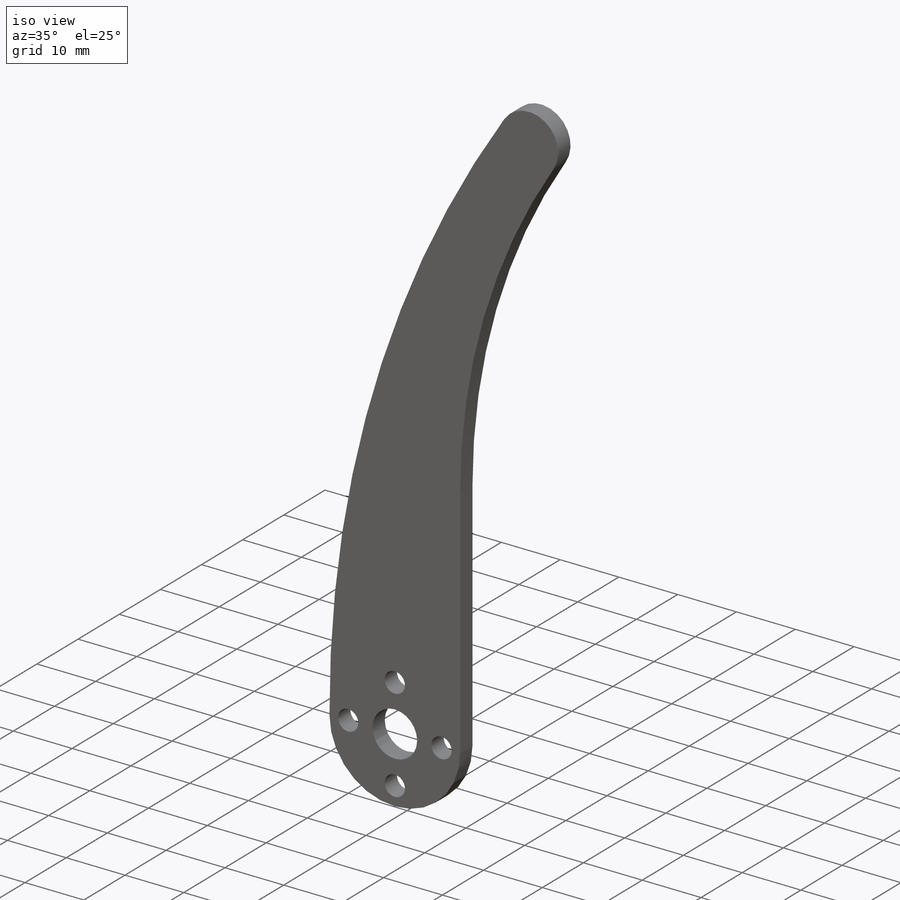
[diagram: iso view]
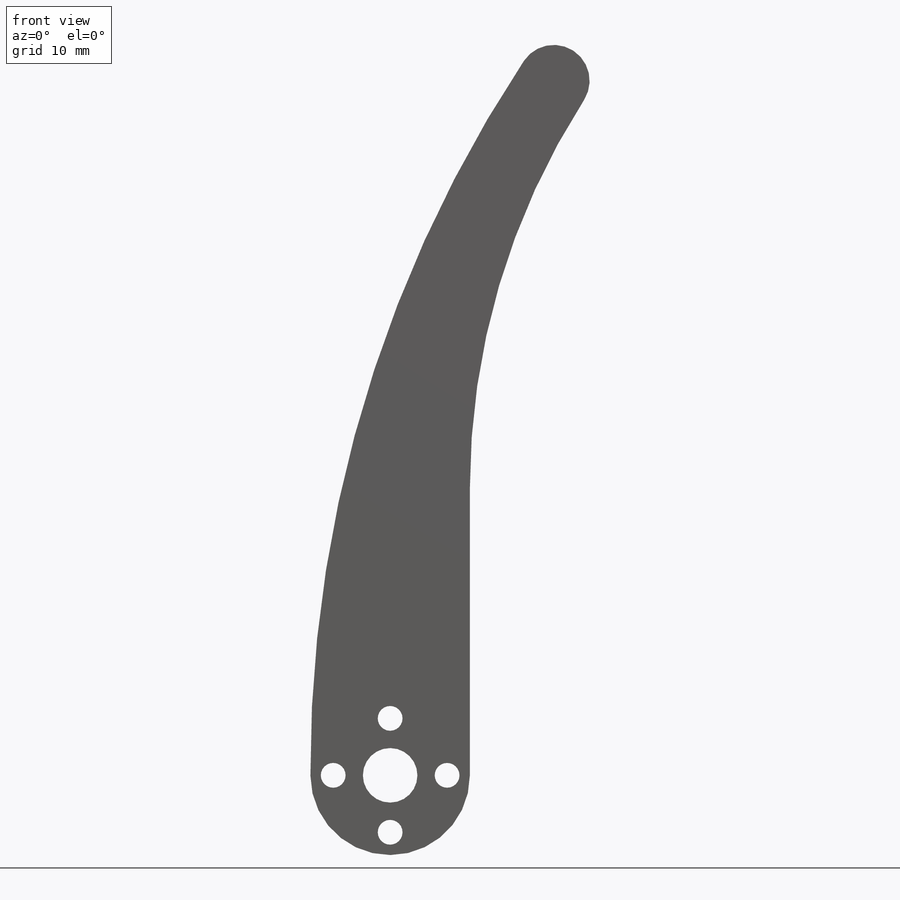
[diagram: front view]
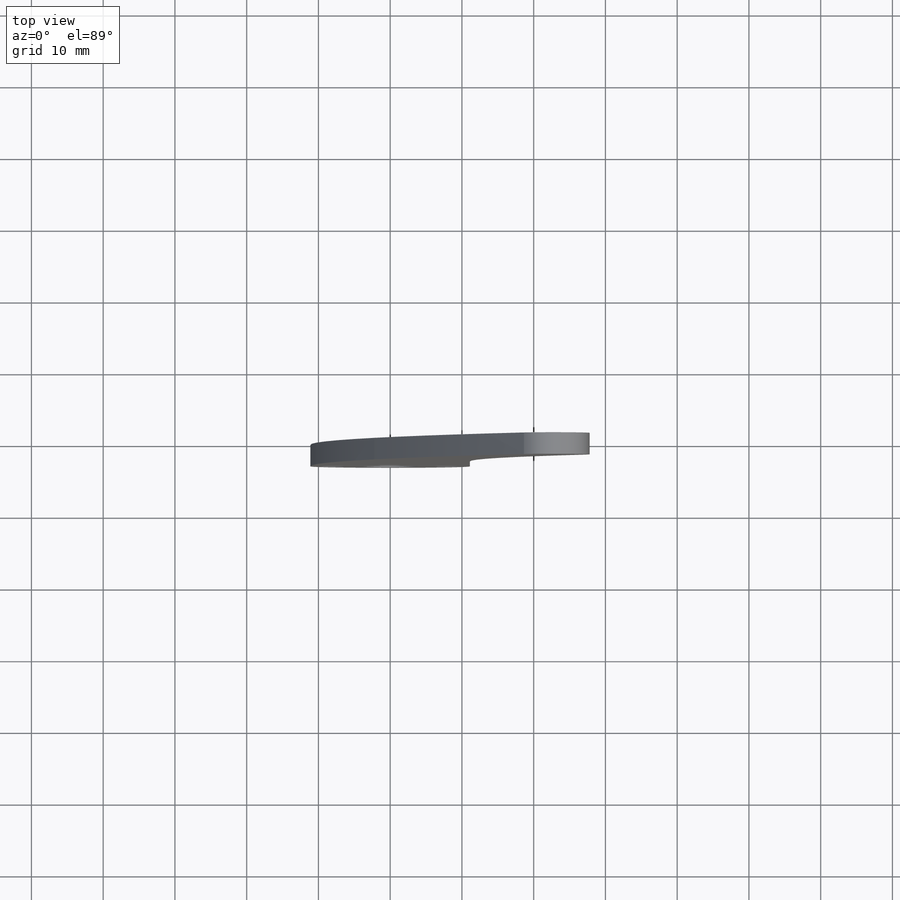
[diagram: top view]
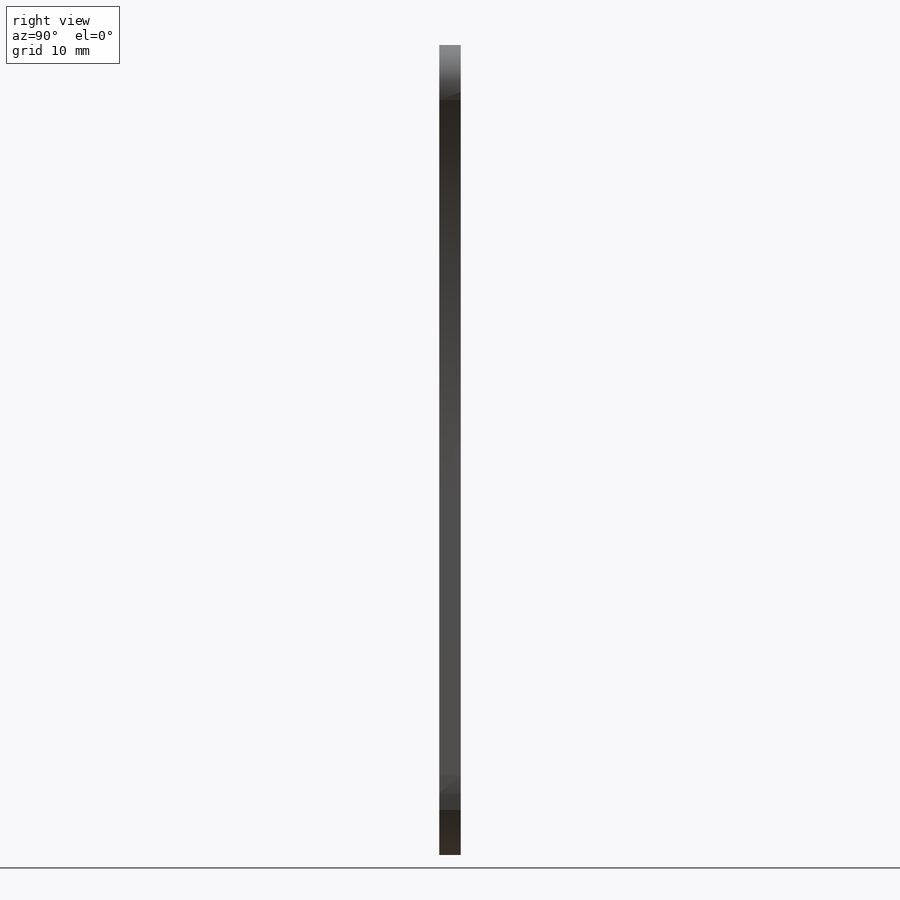
[diagram: right view]
SOLIDWORKS PART (.sldprt)
format: sldprt  version: not decoded by parser v0  size: 194,048 bytes
history: native  units: mm
features: sketch x6, plane x3, hole x2, material x1, extrude x1 (+13 scaffold rows collapsed)
feature tree (26):
  scaffold x13  (default folders/planes/origin — collapsed)
  material  "Matériau <non spécifié>"
  plane  "Plan de face"
  plane  "Plan de dessus"
  plane  "Plan de droite"
  sketch  "Esquisse1"  dims[c1.D1=~18.115651mm c1.D4=100.0mm c2.D1=40.0mm c2.D2=100.0mm c2.D3=105.0mm c2.D4=10.0mm c3.D3=100.0mm c3.D4=77.775mm c4.D3=~44.280909mm c4.D1=40.0mm c4.D2=100.0mm c5.D3=100.0mm c5.D4=5.0mm c5.D5=5.0mm]
  extrude  "Boss.-Extru.3"  Depth=3mm
  sketch  "Esquisse2"  dims[D1=15.875mm D2=15.875mm D3=7.9375mm D4=7.9375mm]
  hole  "Dégagement #51"  Diameter=3.4544mm Depth=3mm
  sketch  "Esquisse4"
  sketch  "Esquisse3"  dims[hole-wizard template sketch: 59 standard entries collapsed; hole parameters kept: c18.Diamètre du perçage jusqu'au prochain=3.4544mm c18.Profondeur du perçage jusqu'au prochain=3.0mm]
  hole  "Dégagement M71"  Diameter=7.6mm Depth=7.01mm
  sketch  "Esquisse6"
  sketch  "Esquisse5"  dims[hole-wizard template sketch: 46 standard entries collapsed; hole parameters kept: c15.Diamètre du perçage=7.6mm c15.Profondeur du perçage=7.01mm c15.D3=~14.816244mm c15.Angle de pointe=118.0deg]
decode coverage: 7 of 9 modeling features carry decoded parameters
note: ~ marks probable driven/reference dimensions
note: suppression state not decoded; provenance and decode notes live in map.json
